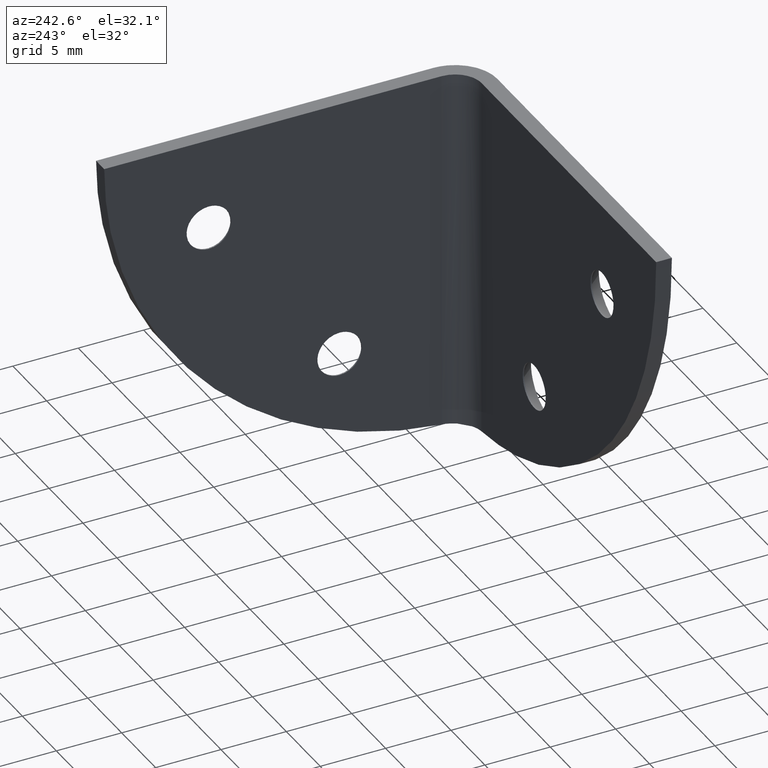
[diagram: clean part render]
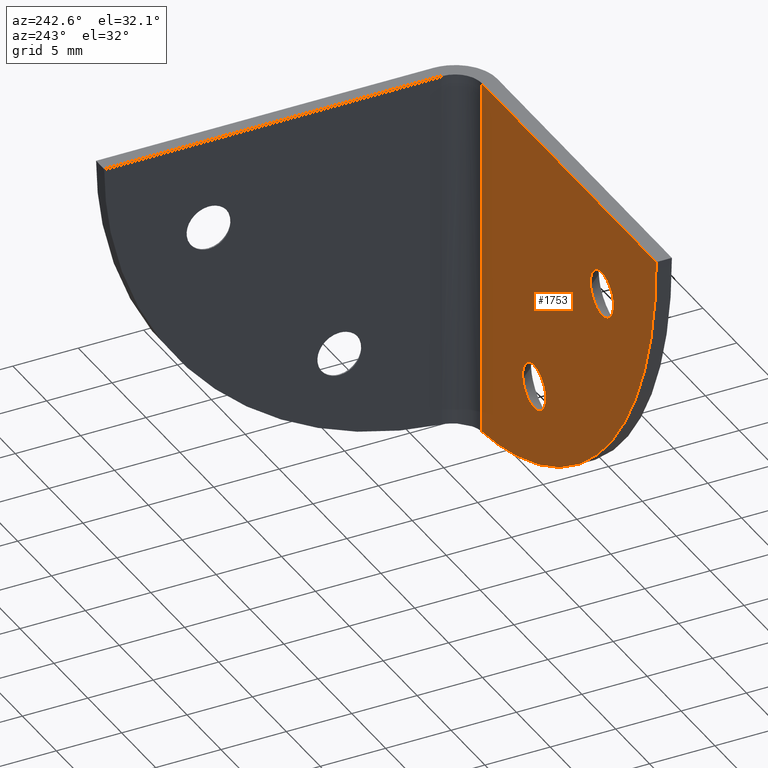
[diagram: same view with one face highlighted and labeled with its STEP entity id]
A machine part, auxiliary view. The second image highlights one B-rep face of the part: STEP entity #1753.
In plain terms, the highlighted face is a freeform B-spline surface patch.
Its self-contained STEP definition (entity closure, byte-faithful):
#750=CARTESIAN_POINT('',(-12.696829157315660,1.199999999999904,8.103782517234016));
#751=VERTEX_POINT('',#750);
#757=CARTESIAN_POINT('',(-11.0,1.199999999999904,9.700000000000001));
#758=VERTEX_POINT('',#757);
#759=CARTESIAN_POINT('',(-11.0,1.199999999999904,9.700000000000001));
#760=CARTESIAN_POINT('',(-12.599200313692927,1.199999999999904,9.700000000000001));
#761=CARTESIAN_POINT('',(-12.696829157315655,1.199999999999904,8.103782517234016));
#769=(BOUNDED_CURVE()B_SPLINE_CURVE(2,(#759,#760,#761),.UNSPECIFIED.,.F.,.U.)B_SPLINE_CURVE_WITH_KNOTS((3,3),(0.500000000000000,0.739332962236933),.UNSPECIFIED.)CURVE()GEOMETRIC_REPRESENTATION_ITEM()RATIONAL_B_SPLINE_CURVE((1.0,0.719603993289065,0.976072041662411))REPRESENTATION_ITEM(''));
#770=EDGE_CURVE('',#758,#751,#769,.T.);
#772=CARTESIAN_POINT('',(-10.402249443517860,1.199999999999904,9.591444083914132));
#773=VERTEX_POINT('',#772);
#774=CARTESIAN_POINT('',(-10.402249443517857,1.199999999999905,9.591444083914132));
#775=CARTESIAN_POINT('',(-10.691267443668334,1.199999999999904,9.699999999999999));
#776=CARTESIAN_POINT('',(-11.0,1.199999999999904,9.700000000000001));
#784=(BOUNDED_CURVE()B_SPLINE_CURVE(2,(#774,#775,#776),.UNSPECIFIED.,.F.,.U.)B_SPLINE_CURVE_WITH_KNOTS((3,3),(0.440284170895640,0.500000000000000),.UNSPECIFIED.)CURVE()GEOMETRIC_REPRESENTATION_ITEM()RATIONAL_B_SPLINE_CURVE((0.893499554631765,0.930038554398040,1.0))REPRESENTATION_ITEM(''));
#785=EDGE_CURVE('',#773,#758,#784,.T.);
#835=CARTESIAN_POINT('',(-11.0,1.199999999999904,6.300000000000000));
#836=VERTEX_POINT('',#835);
#837=CARTESIAN_POINT('',(-11.0,1.199999999999904,6.300000000000000));
#838=CARTESIAN_POINT('',(-9.299999999999999,1.199999999999904,6.299999999999998));
#839=CARTESIAN_POINT('',(-9.299999999999999,1.199999999999904,8.0));
#840=CARTESIAN_POINT('',(-9.299999999999997,1.199999999999904,9.177436312654484));
#841=CARTESIAN_POINT('',(-10.402249443517857,1.199999999999904,9.591444083914132));
#849=(BOUNDED_CURVE()B_SPLINE_CURVE(2,(#837,#838,#839,#840,#841),.UNSPECIFIED.,.F.,.U.)B_SPLINE_CURVE_WITH_KNOTS((3,2,3),(0.0,0.250000000000000,0.440284170895640),.UNSPECIFIED.)CURVE()GEOMETRIC_REPRESENTATION_ITEM()RATIONAL_B_SPLINE_CURVE((1.0,0.707106781186548,1.0,0.777068226788507,0.893499554631765))REPRESENTATION_ITEM(''));
#850=EDGE_CURVE('',#836,#773,#849,.T.);
#852=CARTESIAN_POINT('',(-12.696829157315658,1.199999999999904,8.103782517234016));
#853=CARTESIAN_POINT('',(-12.700000000000003,1.199999999999904,8.051939697632431));
#854=CARTESIAN_POINT('',(-12.699999999999999,1.199999999999904,8.0));
#855=CARTESIAN_POINT('',(-12.699999999999999,1.199999999999904,6.299999999999998));
#856=CARTESIAN_POINT('',(-11.0,1.199999999999904,6.300000000000000));
#864=(BOUNDED_CURVE()B_SPLINE_CURVE(2,(#852,#853,#854,#855,#856),.UNSPECIFIED.,.F.,.U.)B_SPLINE_CURVE_WITH_KNOTS((3,2,3),(0.739332962236933,0.750000000000000,1.0),.UNSPECIFIED.)CURVE()GEOMETRIC_REPRESENTATION_ITEM()RATIONAL_B_SPLINE_CURVE((0.976072041662410,0.987502787897482,1.0,0.707106781186548,1.0))REPRESENTATION_ITEM(''));
#865=EDGE_CURVE('',#751,#836,#864,.T.);
#1078=CARTESIAN_POINT('',(-22.696829157315658,1.199999999999904,21.103782517234020));
#1079=VERTEX_POINT('',#1078);
#1085=CARTESIAN_POINT('',(-21.0,1.199999999999904,22.699999999999999));
#1086=VERTEX_POINT('',#1085);
#1087=CARTESIAN_POINT('',(-21.0,1.199999999999904,22.699999999999999));
#1088=CARTESIAN_POINT('',(-22.599200313692936,1.199999999999904,22.700000000000003));
#1089=CARTESIAN_POINT('',(-22.696829157315658,1.199999999999904,21.103782517234020));
#1097=(BOUNDED_CURVE()B_SPLINE_CURVE(2,(#1087,#1088,#1089),.UNSPECIFIED.,.F.,.U.)B_SPLINE_CURVE_WITH_KNOTS((3,3),(0.500000000000000,0.739332962236933),.UNSPECIFIED.)CURVE()GEOMETRIC_REPRESENTATION_ITEM()RATIONAL_B_SPLINE_CURVE((1.0,0.719603993289065,0.976072041662411))REPRESENTATION_ITEM(''));
#1098=EDGE_CURVE('',#1086,#1079,#1097,.T.);
#1100=CARTESIAN_POINT('',(-20.402249443517860,1.199999999999904,22.591444083914130));
#1101=VERTEX_POINT('',#1100);
#1102=CARTESIAN_POINT('',(-20.402249443517857,1.199999999999904,22.591444083914134));
#1103=CARTESIAN_POINT('',(-20.691267443668334,1.199999999999904,22.700000000000006));
#1104=CARTESIAN_POINT('',(-21.0,1.199999999999904,22.699999999999999));
#1112=(BOUNDED_CURVE()B_SPLINE_CURVE(2,(#1102,#1103,#1104),.UNSPECIFIED.,.F.,.U.)B_SPLINE_CURVE_WITH_KNOTS((3,3),(0.440284170895640,0.500000000000000),.UNSPECIFIED.)CURVE()GEOMETRIC_REPRESENTATION_ITEM()RATIONAL_B_SPLINE_CURVE((0.893499554631765,0.930038554398040,1.0))REPRESENTATION_ITEM(''));
#1113=EDGE_CURVE('',#1101,#1086,#1112,.T.);
#1163=CARTESIAN_POINT('',(-21.0,1.199999999999904,19.300000000000001));
#1164=VERTEX_POINT('',#1163);
#1165=CARTESIAN_POINT('',(-21.0,1.199999999999904,19.300000000000001));
#1166=CARTESIAN_POINT('',(-19.300000000000004,1.199999999999904,19.300000000000004));
#1167=CARTESIAN_POINT('',(-19.300000000000001,1.199999999999904,21.0));
#1168=CARTESIAN_POINT('',(-19.299999999999997,1.199999999999904,22.177436312654482));
#1169=CARTESIAN_POINT('',(-20.402249443517864,1.199999999999904,22.591444083914137));
#1177=(BOUNDED_CURVE()B_SPLINE_CURVE(2,(#1165,#1166,#1167,#1168,#1169),.UNSPECIFIED.,.F.,.U.)B_SPLINE_CURVE_WITH_KNOTS((3,2,3),(0.0,0.250000000000000,0.440284170895640),.UNSPECIFIED.)CURVE()GEOMETRIC_REPRESENTATION_ITEM()RATIONAL_B_SPLINE_CURVE((1.0,0.707106781186548,1.0,0.777068226788507,0.893499554631765))REPRESENTATION_ITEM(''));
#1178=EDGE_CURVE('',#1164,#1101,#1177,.T.);
#1180=CARTESIAN_POINT('',(-22.696829157315658,1.199999999999904,21.103782517234020));
#1181=CARTESIAN_POINT('',(-22.700000000000010,1.199999999999904,21.051939697632431));
#1182=CARTESIAN_POINT('',(-22.699999999999999,1.199999999999904,21.0));
#1183=CARTESIAN_POINT('',(-22.699999999999999,1.199999999999904,19.300000000000004));
#1184=CARTESIAN_POINT('',(-21.0,1.199999999999904,19.300000000000001));
#1192=(BOUNDED_CURVE()B_SPLINE_CURVE(2,(#1180,#1181,#1182,#1183,#1184),.UNSPECIFIED.,.F.,.U.)B_SPLINE_CURVE_WITH_KNOTS((3,2,3),(0.739332962236933,0.750000000000000,1.0),.UNSPECIFIED.)CURVE()GEOMETRIC_REPRESENTATION_ITEM()RATIONAL_B_SPLINE_CURVE((0.976072041662410,0.987502787897482,1.0,0.707106781186548,1.0))REPRESENTATION_ITEM(''));
#1193=EDGE_CURVE('',#1079,#1164,#1192,.T.);
#1461=CARTESIAN_POINT('',(-3.200000000000105,1.199999999999868,0.085848375801886));
#1462=VERTEX_POINT('',#1461);
#1482=CARTESIAN_POINT('',(-3.200000000000105,1.199999999999900,28.0));
#1483=VERTEX_POINT('',#1482);
#1484=CARTESIAN_POINT('',(-3.200000000000105,1.199999999999900,28.0));
#1485=CARTESIAN_POINT('',(-3.200000000000105,1.199999999999868,0.085848375801886));
#1486=QUASI_UNIFORM_CURVE('',1,(#1484,#1485),.UNSPECIFIED.,.F.,.U.);
#1487=EDGE_CURVE('',#1483,#1462,#1486,.T.);
#1667=CARTESIAN_POINT('',(-28.999999990884550,1.199999999999868,28.000000467982549));
#1668=VERTEX_POINT('',#1667);
#1674=CARTESIAN_POINT('',(-28.999999990884561,1.199999999999868,28.000000467982542));
#1675=CARTESIAN_POINT('',(-29.000660380551292,1.199999999999868,2.119329654654073));
#1676=CARTESIAN_POINT('',(-3.200000000000109,1.199999999999868,0.085848375801875));
#1684=(BOUNDED_CURVE()B_SPLINE_CURVE(2,(#1674,#1675,#1676),.UNSPECIFIED.,.F.,.U.)CURVE()GEOMETRIC_REPRESENTATION_ITEM()QUASI_UNIFORM_CURVE()RATIONAL_B_SPLINE_CURVE((1.0,0.734352092227378,1.0))REPRESENTATION_ITEM(''));
#1685=EDGE_CURVE('',#1668,#1462,#1684,.T.);
#1722=CARTESIAN_POINT('',(-28.999999990884550,1.199999999999868,28.000000467982549));
#1723=CARTESIAN_POINT('',(-3.200000000000105,1.199999999999900,28.0));
#1724=QUASI_UNIFORM_CURVE('',1,(#1722,#1723),.UNSPECIFIED.,.F.,.U.);
#1725=EDGE_CURVE('',#1668,#1483,#1724,.T.);
#1731=CARTESIAN_POINT('',(-30.288709940423828,1.199999999999900,29.394311786807751));
#1732=CARTESIAN_POINT('',(-1.911289358450912,1.199999999999900,29.394311786807751));
#1733=CARTESIAN_POINT('',(-30.288709940423828,1.199999999999900,-1.308464190883159));
#1734=CARTESIAN_POINT('',(-1.911289358450912,1.199999999999900,-1.308464190883159));
#1735=B_SPLINE_SURFACE_WITH_KNOTS('',1,1,((#1731,#1733),(#1732,#1734)),.UNSPECIFIED.,.F.,.F.,.U.,(2,2),(2,2),(0.0,28.377420581972910),(0.0,30.702775977690909),.UNSPECIFIED.);
#1736=ORIENTED_EDGE('',*,*,#1725,.T.);
#1737=ORIENTED_EDGE('',*,*,#1487,.T.);
#1738=ORIENTED_EDGE('',*,*,#1685,.F.);
#1739=EDGE_LOOP('',(#1736,#1737,#1738));
#1740=FACE_OUTER_BOUND('',#1739,.T.);
#1741=ORIENTED_EDGE('',*,*,#1098,.T.);
#1742=ORIENTED_EDGE('',*,*,#1193,.T.);
#1743=ORIENTED_EDGE('',*,*,#1178,.T.);
#1744=ORIENTED_EDGE('',*,*,#1113,.T.);
#1745=EDGE_LOOP('',(#1741,#1742,#1743,#1744));
#1746=FACE_BOUND('',#1745,.T.);
#1747=ORIENTED_EDGE('',*,*,#770,.T.);
#1748=ORIENTED_EDGE('',*,*,#865,.T.);
#1749=ORIENTED_EDGE('',*,*,#850,.T.);
#1750=ORIENTED_EDGE('',*,*,#785,.T.);
#1751=EDGE_LOOP('',(#1747,#1748,#1749,#1750));
#1752=FACE_BOUND('',#1751,.T.);
#1753=ADVANCED_FACE('',(#1740,#1746,#1752),#1735,.T.);